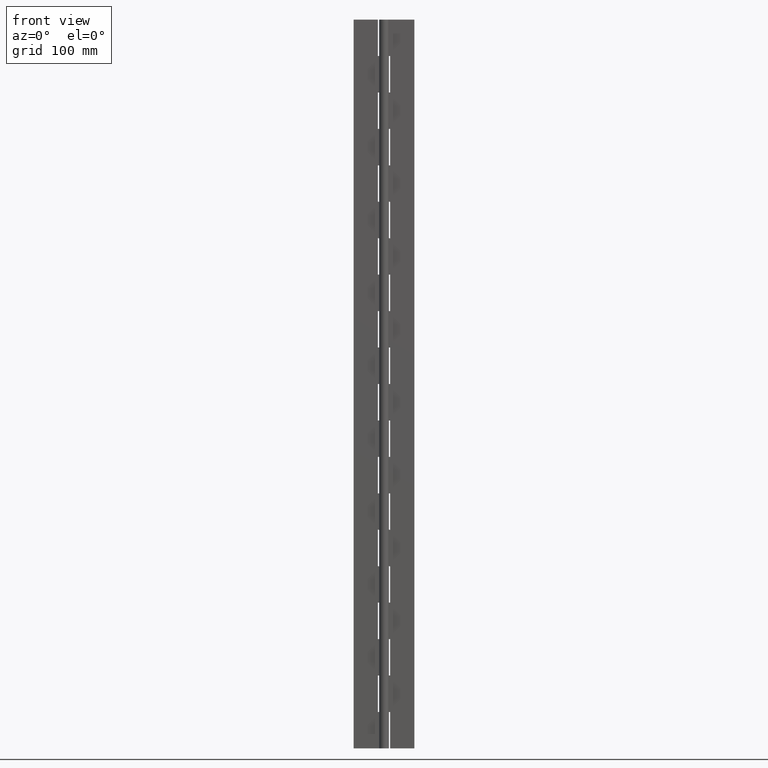
[diagram: clean part render]
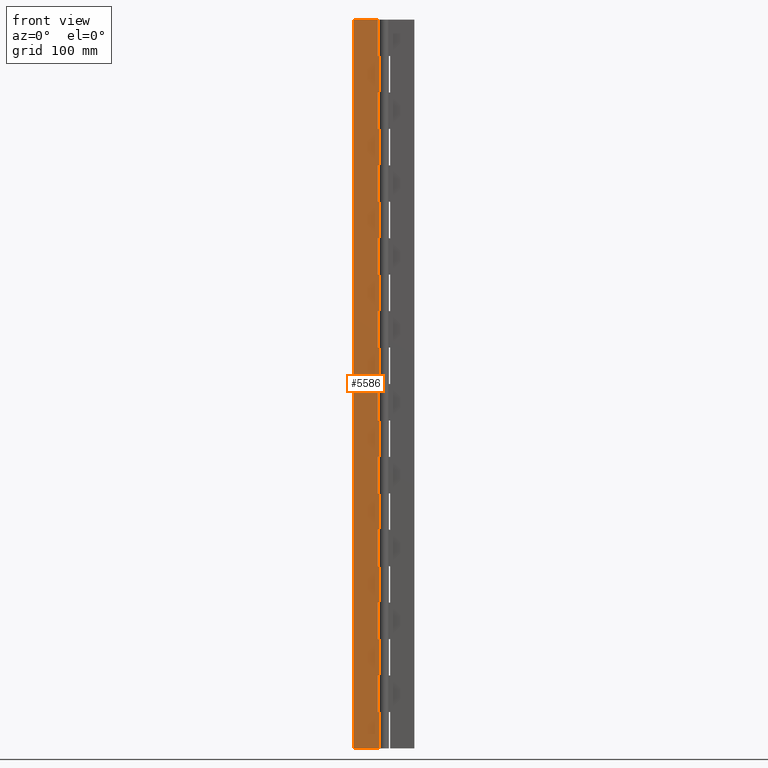
[diagram: same view with one face highlighted and labeled with its STEP entity id]
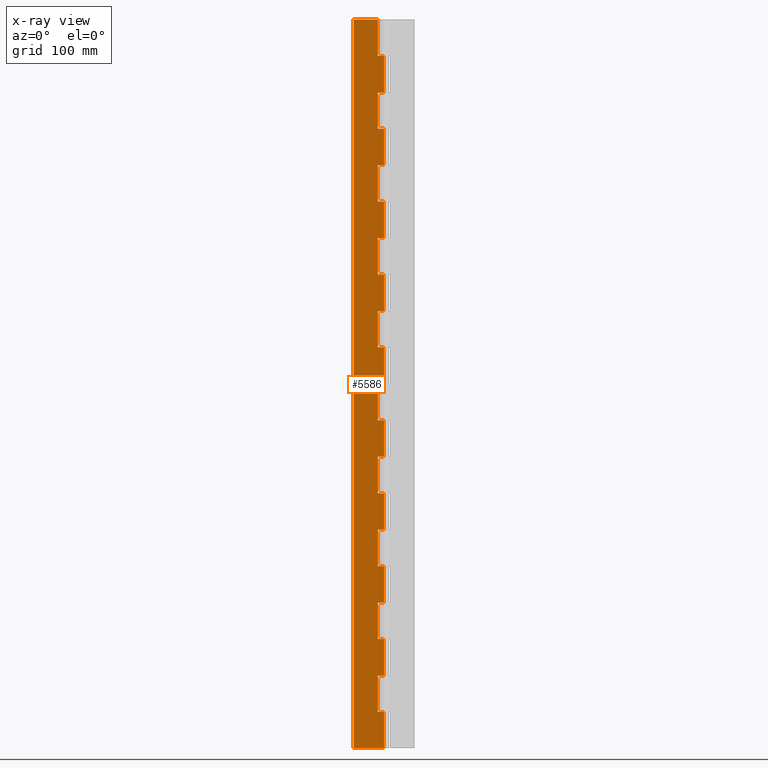
[diagram: x-ray of the same camera — body ghosted, the highlighted face saturated]
A machine part, front view. The second image highlights one B-rep face of the part: STEP entity #5586.
The next image is the same camera in x-ray: the body ghosted, the highlighted face saturated — about 0% of this face is hidden behind the body in this view.
In plain terms, the highlighted face is a freeform B-spline surface patch.
Its self-contained STEP definition (entity closure, byte-faithful):
#2866=CARTESIAN_POINT('',(-5.0,2.0,600.0));
#2867=VERTEX_POINT('',#2866);
#2868=CARTESIAN_POINT('',(-5.0,2.0,570.0));
#2869=VERTEX_POINT('',#2868);
#2870=CARTESIAN_POINT('',(-5.0,2.0,600.0));
#2871=CARTESIAN_POINT('',(-5.0,2.0,570.0));
#2872=QUASI_UNIFORM_CURVE('',1,(#2870,#2871),.UNSPECIFIED.,.F.,.U.);
#2873=EDGE_CURVE('',#2867,#2869,#2872,.T.);
#2902=CARTESIAN_POINT('',(0.0,2.0,570.0));
#2903=VERTEX_POINT('',#2902);
#2904=CARTESIAN_POINT('',(-5.0,2.0,570.0));
#2905=CARTESIAN_POINT('',(0.0,2.0,570.0));
#2906=QUASI_UNIFORM_CURVE('',1,(#2904,#2905),.UNSPECIFIED.,.F.,.U.);
#2907=EDGE_CURVE('',#2869,#2903,#2906,.T.);
#2972=CARTESIAN_POINT('',(0.0,2.0,540.0));
#2973=VERTEX_POINT('',#2972);
#2974=CARTESIAN_POINT('',(-5.0,2.0,540.0));
#2975=VERTEX_POINT('',#2974);
#2976=CARTESIAN_POINT('',(0.0,2.0,540.0));
#2977=CARTESIAN_POINT('',(-5.0,2.0,540.0));
#2978=QUASI_UNIFORM_CURVE('',1,(#2976,#2977),.UNSPECIFIED.,.F.,.U.);
#2979=EDGE_CURVE('',#2973,#2975,#2978,.T.);
#3050=CARTESIAN_POINT('',(-5.0,2.0,510.0));
#3051=VERTEX_POINT('',#3050);
#3052=CARTESIAN_POINT('',(0.0,2.0,510.0));
#3053=VERTEX_POINT('',#3052);
#3054=CARTESIAN_POINT('',(-5.0,2.0,510.0));
#3055=CARTESIAN_POINT('',(0.0,2.0,510.0));
#3056=QUASI_UNIFORM_CURVE('',1,(#3054,#3055),.UNSPECIFIED.,.F.,.U.);
#3057=EDGE_CURVE('',#3051,#3053,#3056,.T.);
#3128=CARTESIAN_POINT('',(-5.0,2.0,540.0));
#3129=CARTESIAN_POINT('',(-5.0,2.0,510.0));
#3130=QUASI_UNIFORM_CURVE('',1,(#3128,#3129),.UNSPECIFIED.,.F.,.U.);
#3131=EDGE_CURVE('',#2975,#3051,#3130,.T.);
#3148=CARTESIAN_POINT('',(0.0,2.0,480.0));
#3149=VERTEX_POINT('',#3148);
#3150=CARTESIAN_POINT('',(-5.0,2.0,480.0));
#3151=VERTEX_POINT('',#3150);
#3152=CARTESIAN_POINT('',(0.0,2.0,480.0));
#3153=CARTESIAN_POINT('',(-5.0,2.0,480.0));
#3154=QUASI_UNIFORM_CURVE('',1,(#3152,#3153),.UNSPECIFIED.,.F.,.U.);
#3155=EDGE_CURVE('',#3149,#3151,#3154,.T.);
#3226=CARTESIAN_POINT('',(-5.0,2.0,450.0));
#3227=VERTEX_POINT('',#3226);
#3228=CARTESIAN_POINT('',(0.0,2.0,450.0));
#3229=VERTEX_POINT('',#3228);
#3230=CARTESIAN_POINT('',(-5.0,2.0,450.0));
#3231=CARTESIAN_POINT('',(0.0,2.0,450.0));
#3232=QUASI_UNIFORM_CURVE('',1,(#3230,#3231),.UNSPECIFIED.,.F.,.U.);
#3233=EDGE_CURVE('',#3227,#3229,#3232,.T.);
#3304=CARTESIAN_POINT('',(-5.0,2.0,480.0));
#3305=CARTESIAN_POINT('',(-5.0,2.0,450.0));
#3306=QUASI_UNIFORM_CURVE('',1,(#3304,#3305),.UNSPECIFIED.,.F.,.U.);
#3307=EDGE_CURVE('',#3151,#3227,#3306,.T.);
#3324=CARTESIAN_POINT('',(0.0,2.0,420.0));
#3325=VERTEX_POINT('',#3324);
#3326=CARTESIAN_POINT('',(-5.0,2.0,420.0));
#3327=VERTEX_POINT('',#3326);
#3328=CARTESIAN_POINT('',(0.0,2.0,420.0));
#3329=CARTESIAN_POINT('',(-5.0,2.0,420.0));
#3330=QUASI_UNIFORM_CURVE('',1,(#3328,#3329),.UNSPECIFIED.,.F.,.U.);
#3331=EDGE_CURVE('',#3325,#3327,#3330,.T.);
#3402=CARTESIAN_POINT('',(-5.0,2.0,390.0));
#3403=VERTEX_POINT('',#3402);
#3404=CARTESIAN_POINT('',(0.0,2.0,390.0));
#3405=VERTEX_POINT('',#3404);
#3406=CARTESIAN_POINT('',(-5.0,2.0,390.0));
#3407=CARTESIAN_POINT('',(0.0,2.0,390.0));
#3408=QUASI_UNIFORM_CURVE('',1,(#3406,#3407),.UNSPECIFIED.,.F.,.U.);
#3409=EDGE_CURVE('',#3403,#3405,#3408,.T.);
#3480=CARTESIAN_POINT('',(-5.0,2.0,420.0));
#3481=CARTESIAN_POINT('',(-5.0,2.0,390.0));
#3482=QUASI_UNIFORM_CURVE('',1,(#3480,#3481),.UNSPECIFIED.,.F.,.U.);
#3483=EDGE_CURVE('',#3327,#3403,#3482,.T.);
#3500=CARTESIAN_POINT('',(0.0,2.0,360.0));
#3501=VERTEX_POINT('',#3500);
#3502=CARTESIAN_POINT('',(-5.0,2.0,360.0));
#3503=VERTEX_POINT('',#3502);
#3504=CARTESIAN_POINT('',(0.0,2.0,360.0));
#3505=CARTESIAN_POINT('',(-5.0,2.0,360.0));
#3506=QUASI_UNIFORM_CURVE('',1,(#3504,#3505),.UNSPECIFIED.,.F.,.U.);
#3507=EDGE_CURVE('',#3501,#3503,#3506,.T.);
#3578=CARTESIAN_POINT('',(-5.0,2.0,330.0));
#3579=VERTEX_POINT('',#3578);
#3580=CARTESIAN_POINT('',(0.0,2.0,330.0));
#3581=VERTEX_POINT('',#3580);
#3582=CARTESIAN_POINT('',(-5.0,2.0,330.0));
#3583=CARTESIAN_POINT('',(0.0,2.0,330.0));
#3584=QUASI_UNIFORM_CURVE('',1,(#3582,#3583),.UNSPECIFIED.,.F.,.U.);
#3585=EDGE_CURVE('',#3579,#3581,#3584,.T.);
#3656=CARTESIAN_POINT('',(-5.0,2.0,360.0));
#3657=CARTESIAN_POINT('',(-5.0,2.0,330.0));
#3658=QUASI_UNIFORM_CURVE('',1,(#3656,#3657),.UNSPECIFIED.,.F.,.U.);
#3659=EDGE_CURVE('',#3503,#3579,#3658,.T.);
#3676=CARTESIAN_POINT('',(0.0,2.0,300.0));
#3677=VERTEX_POINT('',#3676);
#3678=CARTESIAN_POINT('',(-5.0,2.0,300.0));
#3679=VERTEX_POINT('',#3678);
#3680=CARTESIAN_POINT('',(0.0,2.0,300.0));
#3681=CARTESIAN_POINT('',(-5.0,2.0,300.0));
#3682=QUASI_UNIFORM_CURVE('',1,(#3680,#3681),.UNSPECIFIED.,.F.,.U.);
#3683=EDGE_CURVE('',#3677,#3679,#3682,.T.);
#3754=CARTESIAN_POINT('',(-5.0,2.0,270.0));
#3755=VERTEX_POINT('',#3754);
#3756=CARTESIAN_POINT('',(0.0,2.0,270.0));
#3757=VERTEX_POINT('',#3756);
#3758=CARTESIAN_POINT('',(-5.0,2.0,270.0));
#3759=CARTESIAN_POINT('',(0.0,2.0,270.0));
#3760=QUASI_UNIFORM_CURVE('',1,(#3758,#3759),.UNSPECIFIED.,.F.,.U.);
#3761=EDGE_CURVE('',#3755,#3757,#3760,.T.);
#3832=CARTESIAN_POINT('',(-5.0,2.0,300.0));
#3833=CARTESIAN_POINT('',(-5.0,2.0,270.0));
#3834=QUASI_UNIFORM_CURVE('',1,(#3832,#3833),.UNSPECIFIED.,.F.,.U.);
#3835=EDGE_CURVE('',#3679,#3755,#3834,.T.);
#3852=CARTESIAN_POINT('',(0.0,2.0,240.0));
#3853=VERTEX_POINT('',#3852);
#3854=CARTESIAN_POINT('',(-5.0,2.0,240.0));
#3855=VERTEX_POINT('',#3854);
#3856=CARTESIAN_POINT('',(0.0,2.0,240.0));
#3857=CARTESIAN_POINT('',(-5.0,2.0,240.0));
#3858=QUASI_UNIFORM_CURVE('',1,(#3856,#3857),.UNSPECIFIED.,.F.,.U.);
#3859=EDGE_CURVE('',#3853,#3855,#3858,.T.);
#3930=CARTESIAN_POINT('',(-5.0,2.0,210.0));
#3931=VERTEX_POINT('',#3930);
#3932=CARTESIAN_POINT('',(0.0,2.0,210.0));
#3933=VERTEX_POINT('',#3932);
#3934=CARTESIAN_POINT('',(-5.0,2.0,210.0));
#3935=CARTESIAN_POINT('',(0.0,2.0,210.0));
#3936=QUASI_UNIFORM_CURVE('',1,(#3934,#3935),.UNSPECIFIED.,.F.,.U.);
#3937=EDGE_CURVE('',#3931,#3933,#3936,.T.);
#4008=CARTESIAN_POINT('',(-5.0,2.0,240.0));
#4009=CARTESIAN_POINT('',(-5.0,2.0,210.0));
#4010=QUASI_UNIFORM_CURVE('',1,(#4008,#4009),.UNSPECIFIED.,.F.,.U.);
#4011=EDGE_CURVE('',#3855,#3931,#4010,.T.);
#4028=CARTESIAN_POINT('',(0.0,2.0,180.0));
#4029=VERTEX_POINT('',#4028);
#4030=CARTESIAN_POINT('',(-5.0,2.0,180.0));
#4031=VERTEX_POINT('',#4030);
#4032=CARTESIAN_POINT('',(0.0,2.0,180.0));
#4033=CARTESIAN_POINT('',(-5.0,2.0,180.0));
#4034=QUASI_UNIFORM_CURVE('',1,(#4032,#4033),.UNSPECIFIED.,.F.,.U.);
#4035=EDGE_CURVE('',#4029,#4031,#4034,.T.);
#4106=CARTESIAN_POINT('',(-5.0,2.0,150.0));
#4107=VERTEX_POINT('',#4106);
#4108=CARTESIAN_POINT('',(0.0,2.0,150.0));
#4109=VERTEX_POINT('',#4108);
#4110=CARTESIAN_POINT('',(-5.0,2.0,150.0));
#4111=CARTESIAN_POINT('',(0.0,2.0,150.0));
#4112=QUASI_UNIFORM_CURVE('',1,(#4110,#4111),.UNSPECIFIED.,.F.,.U.);
#4113=EDGE_CURVE('',#4107,#4109,#4112,.T.);
#4184=CARTESIAN_POINT('',(-5.0,2.0,180.0));
#4185=CARTESIAN_POINT('',(-5.0,2.0,150.0));
#4186=QUASI_UNIFORM_CURVE('',1,(#4184,#4185),.UNSPECIFIED.,.F.,.U.);
#4187=EDGE_CURVE('',#4031,#4107,#4186,.T.);
#4204=CARTESIAN_POINT('',(0.0,2.0,120.0));
#4205=VERTEX_POINT('',#4204);
#4206=CARTESIAN_POINT('',(-5.0,2.0,120.0));
#4207=VERTEX_POINT('',#4206);
#4208=CARTESIAN_POINT('',(0.0,2.0,120.0));
#4209=CARTESIAN_POINT('',(-5.0,2.0,120.0));
#4210=QUASI_UNIFORM_CURVE('',1,(#4208,#4209),.UNSPECIFIED.,.F.,.U.);
#4211=EDGE_CURVE('',#4205,#4207,#4210,.T.);
#4282=CARTESIAN_POINT('',(-5.0,2.0,90.0));
#4283=VERTEX_POINT('',#4282);
#4284=CARTESIAN_POINT('',(0.0,2.0,90.0));
#4285=VERTEX_POINT('',#4284);
#4286=CARTESIAN_POINT('',(-5.0,2.0,90.0));
#4287=CARTESIAN_POINT('',(0.0,2.0,90.0));
#4288=QUASI_UNIFORM_CURVE('',1,(#4286,#4287),.UNSPECIFIED.,.F.,.U.);
#4289=EDGE_CURVE('',#4283,#4285,#4288,.T.);
#4360=CARTESIAN_POINT('',(-5.0,2.0,120.0));
#4361=CARTESIAN_POINT('',(-5.0,2.0,90.0));
#4362=QUASI_UNIFORM_CURVE('',1,(#4360,#4361),.UNSPECIFIED.,.F.,.U.);
#4363=EDGE_CURVE('',#4207,#4283,#4362,.T.);
#4380=CARTESIAN_POINT('',(0.0,2.0,60.0));
#4381=VERTEX_POINT('',#4380);
#4382=CARTESIAN_POINT('',(-5.0,2.0,60.0));
#4383=VERTEX_POINT('',#4382);
#4384=CARTESIAN_POINT('',(0.0,2.0,60.0));
#4385=CARTESIAN_POINT('',(-5.0,2.0,60.0));
#4386=QUASI_UNIFORM_CURVE('',1,(#4384,#4385),.UNSPECIFIED.,.F.,.U.);
#4387=EDGE_CURVE('',#4381,#4383,#4386,.T.);
#4458=CARTESIAN_POINT('',(-5.0,2.0,30.0));
#4459=VERTEX_POINT('',#4458);
#4460=CARTESIAN_POINT('',(0.0,2.0,30.0));
#4461=VERTEX_POINT('',#4460);
#4462=CARTESIAN_POINT('',(-5.0,2.0,30.0));
#4463=CARTESIAN_POINT('',(0.0,2.0,30.0));
#4464=QUASI_UNIFORM_CURVE('',1,(#4462,#4463),.UNSPECIFIED.,.F.,.U.);
#4465=EDGE_CURVE('',#4459,#4461,#4464,.T.);
#4536=CARTESIAN_POINT('',(-5.0,2.0,60.0));
#4537=CARTESIAN_POINT('',(-5.0,2.0,30.0));
#4538=QUASI_UNIFORM_CURVE('',1,(#4536,#4537),.UNSPECIFIED.,.F.,.U.);
#4539=EDGE_CURVE('',#4383,#4459,#4538,.T.);
#4593=CARTESIAN_POINT('',(0.0,2.0,0.0));
#4594=VERTEX_POINT('',#4593);
#4614=CARTESIAN_POINT('',(-25.0,2.0,0.0));
#4615=VERTEX_POINT('',#4614);
#4616=CARTESIAN_POINT('',(-25.0,2.0,0.0));
#4617=CARTESIAN_POINT('',(0.0,2.0,0.0));
#4618=QUASI_UNIFORM_CURVE('',1,(#4616,#4617),.UNSPECIFIED.,.F.,.U.);
#4619=EDGE_CURVE('',#4615,#4594,#4618,.T.);
#4635=CARTESIAN_POINT('',(-25.0,2.0,600.0));
#4636=VERTEX_POINT('',#4635);
#4637=CARTESIAN_POINT('',(-25.0,2.0,600.0));
#4638=CARTESIAN_POINT('',(-25.0,2.0,0.0));
#4639=QUASI_UNIFORM_CURVE('',1,(#4637,#4638),.UNSPECIFIED.,.F.,.U.);
#4640=EDGE_CURVE('',#4636,#4615,#4639,.T.);
#4733=CARTESIAN_POINT('',(0.0,2.0,30.0));
#4734=CARTESIAN_POINT('',(0.0,2.0,0.0));
#4735=QUASI_UNIFORM_CURVE('',1,(#4733,#4734),.UNSPECIFIED.,.F.,.U.);
#4736=EDGE_CURVE('',#4461,#4594,#4735,.T.);
#4819=CARTESIAN_POINT('',(0.0,2.0,90.0));
#4820=CARTESIAN_POINT('',(0.0,2.0,60.0));
#4821=QUASI_UNIFORM_CURVE('',1,(#4819,#4820),.UNSPECIFIED.,.F.,.U.);
#4822=EDGE_CURVE('',#4285,#4381,#4821,.T.);
#4905=CARTESIAN_POINT('',(0.0,2.0,150.0));
#4906=CARTESIAN_POINT('',(0.0,2.0,120.0));
#4907=QUASI_UNIFORM_CURVE('',1,(#4905,#4906),.UNSPECIFIED.,.F.,.U.);
#4908=EDGE_CURVE('',#4109,#4205,#4907,.T.);
#4991=CARTESIAN_POINT('',(0.0,2.0,210.0));
#4992=CARTESIAN_POINT('',(0.0,2.0,180.0));
#4993=QUASI_UNIFORM_CURVE('',1,(#4991,#4992),.UNSPECIFIED.,.F.,.U.);
#4994=EDGE_CURVE('',#3933,#4029,#4993,.T.);
#5077=CARTESIAN_POINT('',(0.0,2.0,270.0));
#5078=CARTESIAN_POINT('',(0.0,2.0,240.0));
#5079=QUASI_UNIFORM_CURVE('',1,(#5077,#5078),.UNSPECIFIED.,.F.,.U.);
#5080=EDGE_CURVE('',#3757,#3853,#5079,.T.);
#5163=CARTESIAN_POINT('',(0.0,2.0,330.0));
#5164=CARTESIAN_POINT('',(0.0,2.0,300.0));
#5165=QUASI_UNIFORM_CURVE('',1,(#5163,#5164),.UNSPECIFIED.,.F.,.U.);
#5166=EDGE_CURVE('',#3581,#3677,#5165,.T.);
#5249=CARTESIAN_POINT('',(0.0,2.0,390.0));
#5250=CARTESIAN_POINT('',(0.0,2.0,360.0));
#5251=QUASI_UNIFORM_CURVE('',1,(#5249,#5250),.UNSPECIFIED.,.F.,.U.);
#5252=EDGE_CURVE('',#3405,#3501,#5251,.T.);
#5335=CARTESIAN_POINT('',(0.0,2.0,450.0));
#5336=CARTESIAN_POINT('',(0.0,2.0,420.0));
#5337=QUASI_UNIFORM_CURVE('',1,(#5335,#5336),.UNSPECIFIED.,.F.,.U.);
#5338=EDGE_CURVE('',#3229,#3325,#5337,.T.);
#5421=CARTESIAN_POINT('',(0.0,2.0,510.0));
#5422=CARTESIAN_POINT('',(0.0,2.0,480.0));
#5423=QUASI_UNIFORM_CURVE('',1,(#5421,#5422),.UNSPECIFIED.,.F.,.U.);
#5424=EDGE_CURVE('',#3053,#3149,#5423,.T.);
#5443=CARTESIAN_POINT('',(-25.0,2.0,600.0));
#5444=CARTESIAN_POINT('',(-5.0,2.0,600.0));
#5445=QUASI_UNIFORM_CURVE('',1,(#5443,#5444),.UNSPECIFIED.,.F.,.U.);
#5446=EDGE_CURVE('',#4636,#2867,#5445,.T.);
#5527=CARTESIAN_POINT('',(0.0,2.0,570.0));
#5528=CARTESIAN_POINT('',(0.0,2.0,540.0));
#5529=QUASI_UNIFORM_CURVE('',1,(#5527,#5528),.UNSPECIFIED.,.F.,.U.);
#5530=EDGE_CURVE('',#2903,#2973,#5529,.T.);
#5537=CARTESIAN_POINT('',(-26.248749951545150,2.0,-29.969998837083590));
#5538=CARTESIAN_POINT('',(-26.248749951545150,2.0,629.970014930337700));
#5539=CARTESIAN_POINT('',(1.248750622097401,2.0,-29.969998837083590));
#5540=CARTESIAN_POINT('',(1.248750622097401,2.0,629.970014930337700));
#5541=B_SPLINE_SURFACE_WITH_KNOTS('',1,1,((#5537,#5539),(#5538,#5540)),.UNSPECIFIED.,.F.,.F.,.U.,(2,2),(2,2),(0.0,659.940013767421310),(0.0,27.497500573642551),.UNSPECIFIED.);
#5542=ORIENTED_EDGE('',*,*,#2907,.F.);
#5543=ORIENTED_EDGE('',*,*,#2873,.F.);
#5544=ORIENTED_EDGE('',*,*,#5446,.F.);
#5545=ORIENTED_EDGE('',*,*,#4640,.T.);
#5546=ORIENTED_EDGE('',*,*,#4619,.T.);
#5547=ORIENTED_EDGE('',*,*,#4736,.F.);
#5548=ORIENTED_EDGE('',*,*,#4465,.F.);
#5549=ORIENTED_EDGE('',*,*,#4539,.F.);
#5550=ORIENTED_EDGE('',*,*,#4387,.F.);
#5551=ORIENTED_EDGE('',*,*,#4822,.F.);
#5552=ORIENTED_EDGE('',*,*,#4289,.F.);
#5553=ORIENTED_EDGE('',*,*,#4363,.F.);
#5554=ORIENTED_EDGE('',*,*,#4211,.F.);
#5555=ORIENTED_EDGE('',*,*,#4908,.F.);
#5556=ORIENTED_EDGE('',*,*,#4113,.F.);
#5557=ORIENTED_EDGE('',*,*,#4187,.F.);
#5558=ORIENTED_EDGE('',*,*,#4035,.F.);
#5559=ORIENTED_EDGE('',*,*,#4994,.F.);
#5560=ORIENTED_EDGE('',*,*,#3937,.F.);
#5561=ORIENTED_EDGE('',*,*,#4011,.F.);
#5562=ORIENTED_EDGE('',*,*,#3859,.F.);
#5563=ORIENTED_EDGE('',*,*,#5080,.F.);
#5564=ORIENTED_EDGE('',*,*,#3761,.F.);
#5565=ORIENTED_EDGE('',*,*,#3835,.F.);
#5566=ORIENTED_EDGE('',*,*,#3683,.F.);
#5567=ORIENTED_EDGE('',*,*,#5166,.F.);
#5568=ORIENTED_EDGE('',*,*,#3585,.F.);
#5569=ORIENTED_EDGE('',*,*,#3659,.F.);
#5570=ORIENTED_EDGE('',*,*,#3507,.F.);
#5571=ORIENTED_EDGE('',*,*,#5252,.F.);
#5572=ORIENTED_EDGE('',*,*,#3409,.F.);
#5573=ORIENTED_EDGE('',*,*,#3483,.F.);
#5574=ORIENTED_EDGE('',*,*,#3331,.F.);
#5575=ORIENTED_EDGE('',*,*,#5338,.F.);
#5576=ORIENTED_EDGE('',*,*,#3233,.F.);
#5577=ORIENTED_EDGE('',*,*,#3307,.F.);
#5578=ORIENTED_EDGE('',*,*,#3155,.F.);
#5579=ORIENTED_EDGE('',*,*,#5424,.F.);
#5580=ORIENTED_EDGE('',*,*,#3057,.F.);
#5581=ORIENTED_EDGE('',*,*,#3131,.F.);
#5582=ORIENTED_EDGE('',*,*,#2979,.F.);
#5583=ORIENTED_EDGE('',*,*,#5530,.F.);
#5584=EDGE_LOOP('',(#5542,#5543,#5544,#5545,#5546,#5547,#5548,#5549,#5550,#5551,#5552,#5553,#5554,#5555,#5556,#5557,#5558,#5559,#5560,#5561,#5562,#5563,#5564,#5565,#5566,#5567,#5568,#5569,#5570,#5571,#5572,#5573,#5574,#5575,#5576,#5577,#5578,#5579,#5580,#5581,#5582,#5583));
#5585=FACE_OUTER_BOUND('',#5584,.T.);
#5586=ADVANCED_FACE('',(#5585),#5541,.F.);